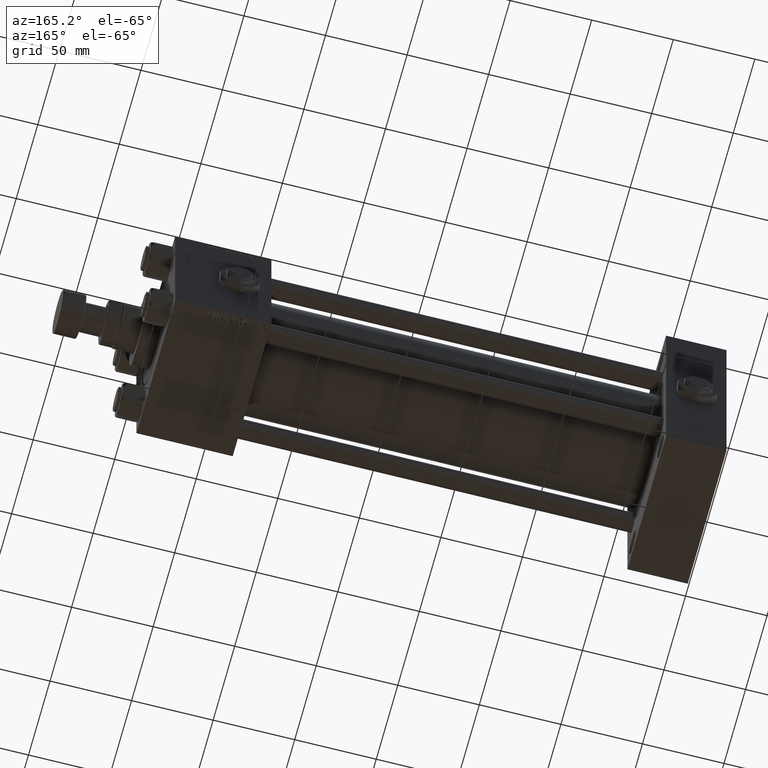
[diagram: clean part render]
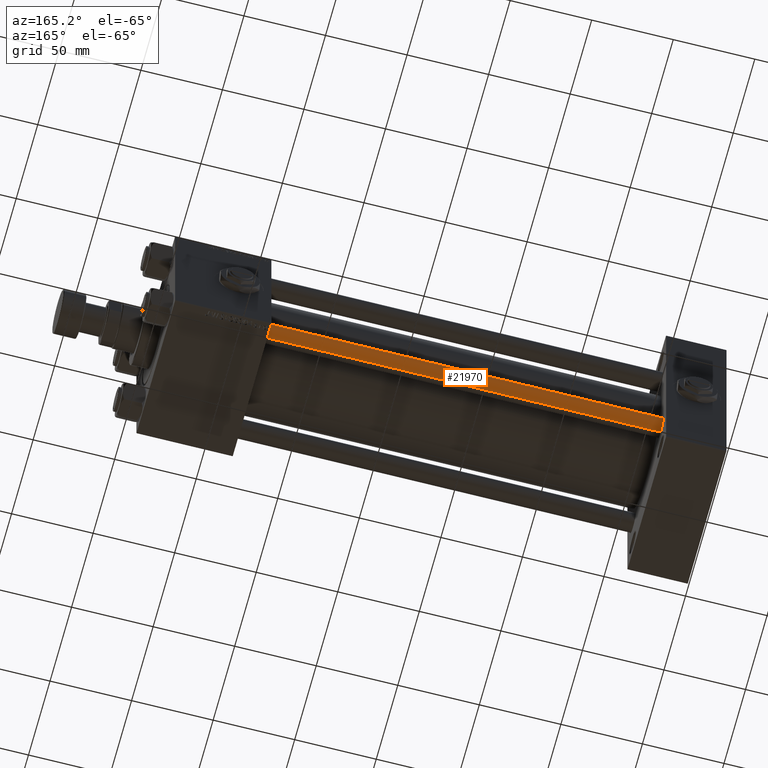
[diagram: same view with one face highlighted and labeled with its STEP entity id]
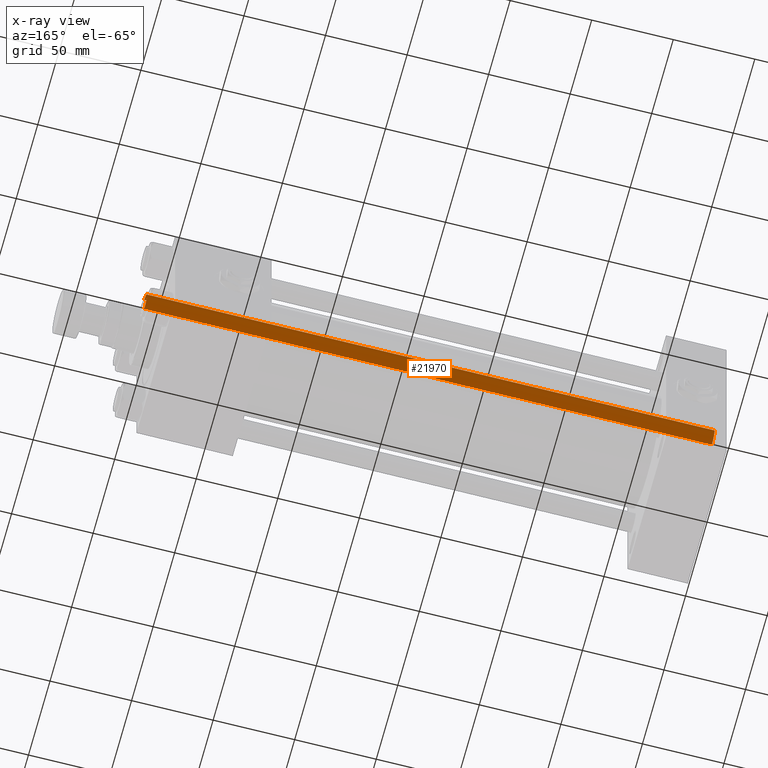
[diagram: x-ray of the same camera — body ghosted, the highlighted face saturated]
A machine part, auxiliary view. The second image highlights one B-rep face of the part: STEP entity #21970.
The next image is the same camera in x-ray: the body ghosted, the highlighted face saturated — about 0% of this face is hidden behind the body in this view.
In plain terms, the highlighted cylindrical surface (edge-blend (fillet) strip) has radius 6 mm, axis along (-1, 0, 0).
Its self-contained STEP definition (entity closure, byte-faithful):
#119 = LINE ( 'NONE', #639, #6471 ) ;
#639 = CARTESIAN_POINT ( 'NONE',  ( 6.000000000000000888, 7.347880794884120722E-16, 349.0000000000000000 ) ) ;
#766 = CARTESIAN_POINT ( 'NONE',  ( -6.000000000000000888, 0.000000000000000000, 348.5000000000000568 ) ) ;
#1583 = DIRECTION ( 'NONE',  ( 1.000000000000000000, 0.000000000000000000, 0.000000000000000000 ) ) ;
#1878 = ORIENTED_EDGE ( 'NONE', *, *, #18445, .T. ) ;
#3468 = VERTEX_POINT ( 'NONE', #21848 ) ;
#6471 = VECTOR ( 'NONE', #49258, 1000.000000000000000 ) ;
#6532 = EDGE_CURVE ( 'NONE', #33031, #3468, #119, .T. ) ;
#6628 = CARTESIAN_POINT ( 'NONE',  ( 0.000000000000000000, 0.000000000000000000, 0.5000000000000559552 ) ) ;
#7004 = DIRECTION ( 'NONE',  ( -0.000000000000000000, -0.000000000000000000, -1.000000000000000000 ) ) ;
#7389 = DIRECTION ( 'NONE',  ( -0.000000000000000000, -0.000000000000000000, -1.000000000000000000 ) ) ;
#8111 = CIRCLE ( 'NONE', #19093, 6.000000000000000888 ) ;
#8996 = ORIENTED_EDGE ( 'NONE', *, *, #20174, .T. ) ;
#9506 = VERTEX_POINT ( 'NONE', #16393 ) ;
#10233 = CIRCLE ( 'NONE', #39956, 6.000000000000000888 ) ;
#10439 = CYLINDRICAL_SURFACE ( 'NONE', #37456, 6.000000000000000888 ) ;
#10961 = CARTESIAN_POINT ( 'NONE',  ( 0.000000000000000000, 0.000000000000000000, 348.5000000000000568 ) ) ;
#10976 = CARTESIAN_POINT ( 'NONE',  ( 0.000000000000000000, 0.000000000000000000, 349.0000000000000000 ) ) ;
#11353 = CARTESIAN_POINT ( 'NONE',  ( -6.000000000000000888, 0.000000000000000000, 349.0000000000000000 ) ) ;
#14919 = CARTESIAN_POINT ( 'NONE',  ( 6.000000000000000888, 7.347880794884120722E-16, 348.5000000000000568 ) ) ;
#16393 = CARTESIAN_POINT ( 'NONE',  ( -6.000000000000000888, 0.000000000000000000, 0.5000000000000559552 ) ) ;
#18445 = EDGE_CURVE ( 'NONE', #23358, #9506, #43783, .T. ) ;
#19093 = AXIS2_PLACEMENT_3D ( 'NONE', #6628, #23055, #1583 ) ;
#20174 = EDGE_CURVE ( 'NONE', #33031, #23358, #10233, .T. ) ;
#20996 = ORIENTED_EDGE ( 'NONE', *, *, #6532, .F. ) ;
#21848 = CARTESIAN_POINT ( 'NONE',  ( 6.000000000000000888, 7.347880794884120722E-16, 0.5000000000000559552 ) ) ;
#21970 = ADVANCED_FACE ( 'NONE', ( #46855 ), #10439, .T. ) ;
#23055 = DIRECTION ( 'NONE',  ( -0.000000000000000000, -0.000000000000000000, 1.000000000000000000 ) ) ;
#23358 = VERTEX_POINT ( 'NONE', #766 ) ;
#30377 = DIRECTION ( 'NONE',  ( -1.000000000000000000, 0.000000000000000000, 0.000000000000000000 ) ) ;
#33031 = VERTEX_POINT ( 'NONE', #14919 ) ;
#34398 = EDGE_CURVE ( 'NONE', #9506, #3468, #8111, .T. ) ;
#37456 = AXIS2_PLACEMENT_3D ( 'NONE', #10976, #7004, #30377 ) ;
#39798 = ORIENTED_EDGE ( 'NONE', *, *, #34398, .T. ) ;
#39956 = AXIS2_PLACEMENT_3D ( 'NONE', #10961, #43383, #51354 ) ;
#43383 = DIRECTION ( 'NONE',  ( 0.000000000000000000, 0.000000000000000000, -1.000000000000000000 ) ) ;
#43783 = LINE ( 'NONE', #11353, #44974 ) ;
#44974 = VECTOR ( 'NONE', #7389, 1000.000000000000000 ) ;
#46855 = FACE_OUTER_BOUND ( 'NONE', #48795, .T. ) ;
#48795 = EDGE_LOOP ( 'NONE', ( #20996, #8996, #1878, #39798 ) ) ;
#49258 = DIRECTION ( 'NONE',  ( -0.000000000000000000, -0.000000000000000000, -1.000000000000000000 ) ) ;
#51354 = DIRECTION ( 'NONE',  ( 1.000000000000000000, 0.000000000000000000, 0.000000000000000000 ) ) ;